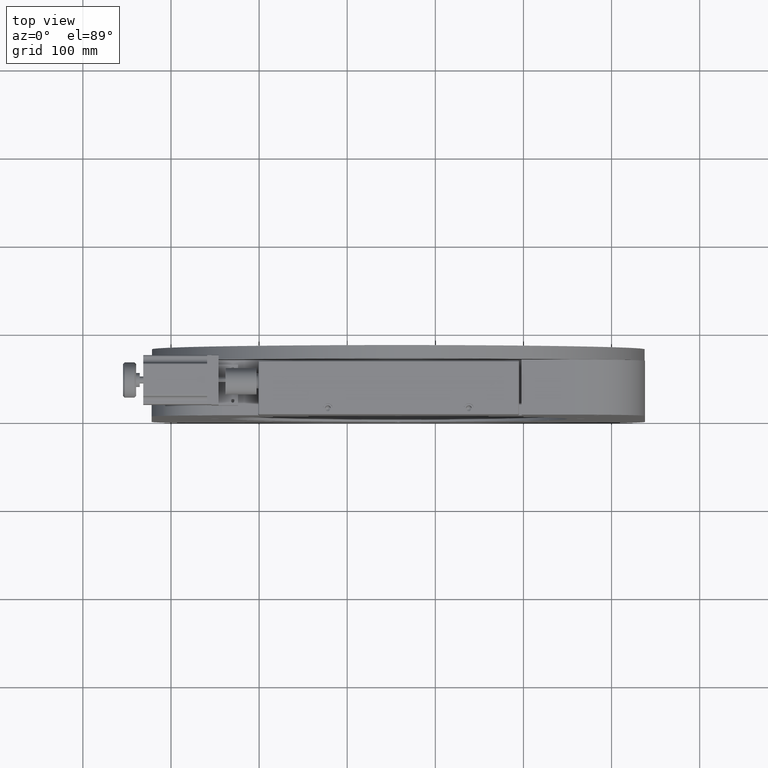
[diagram: clean part render]
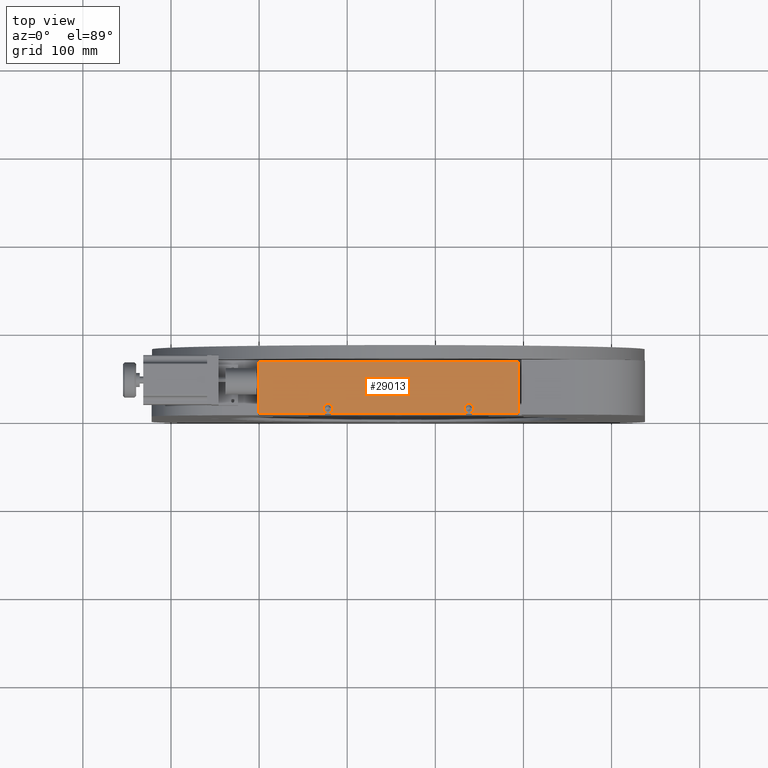
[diagram: same view with one face highlighted and labeled with its STEP entity id]
A machine part, top view. The second image highlights one B-rep face of the part: STEP entity #29013.
In plain terms, the highlighted planar face has unit normal (-0, -0, -1).
Its self-contained STEP definition (entity closure, byte-faithful):
#192 = PLANE ( 'NONE',  #22295 ) ;
#623 = CARTESIAN_POINT ( 'NONE',  ( 232.5000000000000300, 7.000000000000021300, 1.000000000000000900 ) ) ;
#1238 = AXIS2_PLACEMENT_3D ( 'NONE', #8998, #14360, #8191 ) ;
#1276 = EDGE_CURVE ( 'NONE', #3421, #3836, #23085, .T. ) ;
#1410 = CARTESIAN_POINT ( 'NONE',  ( 72.50000000000004300, 7.000000000000021300, 1.000000000000000900 ) ) ;
#1866 = VECTOR ( 'NONE', #13803, 1000.000000000000000 ) ;
#1928 = ORIENTED_EDGE ( 'NONE', *, *, #9626, .F. ) ;
#2071 = CARTESIAN_POINT ( 'NONE',  ( 2.775557561562891400E-014, 30.50000000000002800, 0.9999999999998898700 ) ) ;
#2730 = ORIENTED_EDGE ( 'NONE', *, *, #1276, .F. ) ;
#3421 = VERTEX_POINT ( 'NONE', #9401 ) ;
#3431 = VERTEX_POINT ( 'NONE', #30816 ) ;
#3640 = DIRECTION ( 'NONE',  ( -1.000000000000000000, 1.040834085586084900E-017, 2.602085213965173700E-018 ) ) ;
#3836 = VERTEX_POINT ( 'NONE', #14297 ) ;
#3837 = FACE_BOUND ( 'NONE', #22307, .T. ) ;
#4356 = VERTEX_POINT ( 'NONE', #1410 ) ;
#4477 = CIRCLE ( 'NONE', #6317, 5.500000000000005300 ) ;
#5845 = FACE_BOUND ( 'NONE', #16029, .T. ) ;
#5958 = CARTESIAN_POINT ( 'NONE',  ( 238.0000000000000600, 7.000000000000033800, 1.000000000000000900 ) ) ;
#6149 = VERTEX_POINT ( 'NONE', #16009 ) ;
#6317 = AXIS2_PLACEMENT_3D ( 'NONE', #11748, #6405, #26922 ) ;
#6405 = DIRECTION ( 'NONE',  ( 2.602085213965209500E-018, 3.435970187611875500E-015, 1.000000000000000000 ) ) ;
#6616 = CIRCLE ( 'NONE', #30334, 5.500000000000005300 ) ;
#6809 = LINE ( 'NONE', #26350, #1866 ) ;
#7148 = ORIENTED_EDGE ( 'NONE', *, *, #8319, .F. ) ;
#7950 = LINE ( 'NONE', #12998, #14062 ) ;
#8191 = DIRECTION ( 'NONE',  ( 1.000000000000000000, 0.0000000000000000000, 0.0000000000000000000 ) ) ;
#8202 = CARTESIAN_POINT ( 'NONE',  ( 147.0000000000000300, 30.50000000000002800, 0.9999999999998898700 ) ) ;
#8319 = EDGE_CURVE ( 'NONE', #3836, #25951, #22751, .T. ) ;
#8998 = CARTESIAN_POINT ( 'NONE',  ( 78.00000000000004300, 7.000000000000033800, 1.000000000000000900 ) ) ;
#9401 = CARTESIAN_POINT ( 'NONE',  ( 294.0000000000001100, 1.000000000000000900, 1.000000000000000900 ) ) ;
#9587 = CARTESIAN_POINT ( 'NONE',  ( 83.50000000000004300, 7.000000000000033800, 1.000000000000000900 ) ) ;
#9626 = EDGE_CURVE ( 'NONE', #3431, #27880, #25431, .T. ) ;
#10143 = ORIENTED_EDGE ( 'NONE', *, *, #22529, .F. ) ;
#10541 = DIRECTION ( 'NONE',  ( 2.602085213965209500E-018, 3.435970187611875500E-015, 1.000000000000000000 ) ) ;
#10643 = EDGE_CURVE ( 'NONE', #27880, #3431, #6616, .T. ) ;
#11639 = VECTOR ( 'NONE', #17979, 1000.000000000000000 ) ;
#11748 = CARTESIAN_POINT ( 'NONE',  ( 78.00000000000004300, 7.000000000000033800, 1.000000000000000900 ) ) ;
#12841 = AXIS2_PLACEMENT_3D ( 'NONE', #15814, #10541, #28666 ) ;
#12882 = DIRECTION ( 'NONE',  ( 1.000000000000000000, -1.040834085586084900E-017, -2.602085213965173700E-018 ) ) ;
#12998 = CARTESIAN_POINT ( 'NONE',  ( 147.0000000000000300, 60.00000000000005700, 0.9999999999997788400 ) ) ;
#13111 = DIRECTION ( 'NONE',  ( -2.602085213965209500E-018, -3.435970187611875500E-015, -1.000000000000000000 ) ) ;
#13803 = DIRECTION ( 'NONE',  ( -1.040834085586083900E-017, -1.000000000000000000, 3.435970187611875500E-015 ) ) ;
#13965 = EDGE_CURVE ( 'NONE', #18235, #4356, #27729, .T. ) ;
#14062 = VECTOR ( 'NONE', #12882, 1000.000000000000000 ) ;
#14173 = VECTOR ( 'NONE', #33058, 1000.000000000000000 ) ;
#14297 = CARTESIAN_POINT ( 'NONE',  ( 0.0000000000000000000, 1.000000000000000900, 1.000000000000000900 ) ) ;
#14360 = DIRECTION ( 'NONE',  ( 2.602085213965209500E-018, 3.435970187611875500E-015, 1.000000000000000000 ) ) ;
#14600 = ORIENTED_EDGE ( 'NONE', *, *, #15594, .F. ) ;
#15594 = EDGE_CURVE ( 'NONE', #25951, #6149, #7950, .T. ) ;
#15814 = CARTESIAN_POINT ( 'NONE',  ( 238.0000000000000600, 7.000000000000033800, 1.000000000000000900 ) ) ;
#16009 = CARTESIAN_POINT ( 'NONE',  ( 294.0000000000001100, 60.00000000000005700, 0.9999999999997788400 ) ) ;
#16029 = EDGE_LOOP ( 'NONE', ( #21095, #21752 ) ) ;
#16981 = EDGE_CURVE ( 'NONE', #4356, #18235, #4477, .T. ) ;
#17979 = DIRECTION ( 'NONE',  ( -1.000000000000000000, 1.040834085586084900E-017, 2.602085213965173700E-018 ) ) ;
#18235 = VERTEX_POINT ( 'NONE', #9587 ) ;
#18993 = EDGE_LOOP ( 'NONE', ( #7148, #2730, #10143, #14600 ) ) ;
#21095 = ORIENTED_EDGE ( 'NONE', *, *, #13965, .F. ) ;
#21752 = ORIENTED_EDGE ( 'NONE', *, *, #16981, .F. ) ;
#21931 = ORIENTED_EDGE ( 'NONE', *, *, #10643, .F. ) ;
#21948 = DIRECTION ( 'NONE',  ( 2.602085213965209500E-018, 3.435970187611875500E-015, 1.000000000000000000 ) ) ;
#22295 = AXIS2_PLACEMENT_3D ( 'NONE', #8202, #13111, #3640 ) ;
#22307 = EDGE_LOOP ( 'NONE', ( #1928, #21931 ) ) ;
#22529 = EDGE_CURVE ( 'NONE', #6149, #3421, #6809, .T. ) ;
#22751 = LINE ( 'NONE', #2071, #14173 ) ;
#23085 = LINE ( 'NONE', #30928, #11639 ) ;
#25431 = CIRCLE ( 'NONE', #12841, 5.500000000000005300 ) ;
#25951 = VERTEX_POINT ( 'NONE', #33426 ) ;
#26350 = CARTESIAN_POINT ( 'NONE',  ( 294.0000000000001100, 30.50000000000002800, 0.9999999999998898700 ) ) ;
#26922 = DIRECTION ( 'NONE',  ( 1.000000000000000000, 0.0000000000000000000, 0.0000000000000000000 ) ) ;
#27729 = CIRCLE ( 'NONE', #1238, 5.500000000000005300 ) ;
#27880 = VERTEX_POINT ( 'NONE', #623 ) ;
#28666 = DIRECTION ( 'NONE',  ( 1.000000000000000000, 0.0000000000000000000, 0.0000000000000000000 ) ) ;
#29013 = ADVANCED_FACE ( 'NONE', ( #30736, #3837, #5845 ), #192, .F. ) ;
#29650 = DIRECTION ( 'NONE',  ( 1.000000000000000000, 0.0000000000000000000, 0.0000000000000000000 ) ) ;
#30334 = AXIS2_PLACEMENT_3D ( 'NONE', #5958, #21948, #29650 ) ;
#30736 = FACE_OUTER_BOUND ( 'NONE', #18993, .T. ) ;
#30816 = CARTESIAN_POINT ( 'NONE',  ( 243.5000000000000600, 7.000000000000033800, 1.000000000000000900 ) ) ;
#30928 = CARTESIAN_POINT ( 'NONE',  ( 147.0000000000000300, 1.000000000000000900, 1.000000000000000900 ) ) ;
#33058 = DIRECTION ( 'NONE',  ( 1.040834085586083900E-017, 1.000000000000000000, -3.435970187611875500E-015 ) ) ;
#33426 = CARTESIAN_POINT ( 'NONE',  ( 0.0000000000000000000, 60.00000000000005700, 0.9999999999997788400 ) ) ;